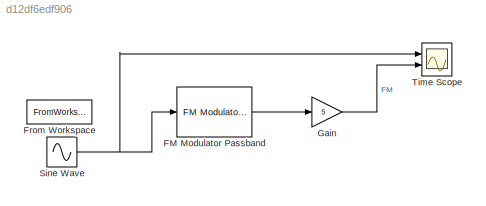
MODEL slx_d12df6edf906
KIND model
CONFIG AbsTol = auto
CONFIG EnableMultiTasking = off
CONFIG FixedStep = auto
CONFIG MaxStep = auto
CONFIG MinStep = auto
CONFIG RelTol = 1e-3
CONFIG SampleTimeConstraint = Unconstrained
CONFIG SolverName = VariableStepAuto
CONFIG StartTime = 0.0
CONFIG StopTime = 2/1000
BLOCK [Reference] FM Modulator Passband  REF=commanapbnd3/FM
Modulator
Passband
  Ports = [1, 1]
  SourceBlock = commanapbnd3/FM\nModulator\nPassband
  SourceProductBaseCode = CM
  SourceType = FM Modulator Passband
BLOCK [FromWorkspace] From Workspace
  SampleTime = 0.000001
  VariableName = simin
BLOCK [Gain] Gain
  Gain = 5
BLOCK [Sin] Sine Wave
  Amplitude = 3
  Frequency = 2*pi*1000
  Ports = [0, 1]
  SampleTime = 0.00000001
BLOCK [Scope] Time Scope
  DefaultConfigurationName = spbscopes.TimeScopeBlockCfg
  Floating = off
  NumInputPorts = 2
  Ports = [2]
  ScopeSpecificationString = spbscopes.TimeScopeBlockCfg('CurrentConfiguration', extmgr.ConfigurationSet(extmgr.Configuration('Core','General UI',true),extmgr.Configuration('Core','Source UI',true),extmgr.Configuration('Sources','WiredSimulink',true),extmgr.Configuration('Visuals','Time Domain',true,'DisplayPropertyDefaults',struct('MinYLimReal','-6.25','MaxYLimReal','6.25','YLabelReal','Amplitude','MinYLimMag','0.00000','Max...<+1583ch>
  UserDataPersistent = on
LINE FM Modulator Passband:1 -> Gain:1
LINE Gain:1 -> Time Scope:2
NET Sine Wave:1 -> FM Modulator Passband:1, Time Scope:1
note: NET lines group one-source signal fan-out (src -> all destinations, sorted); 1:1 wires keep LINE
